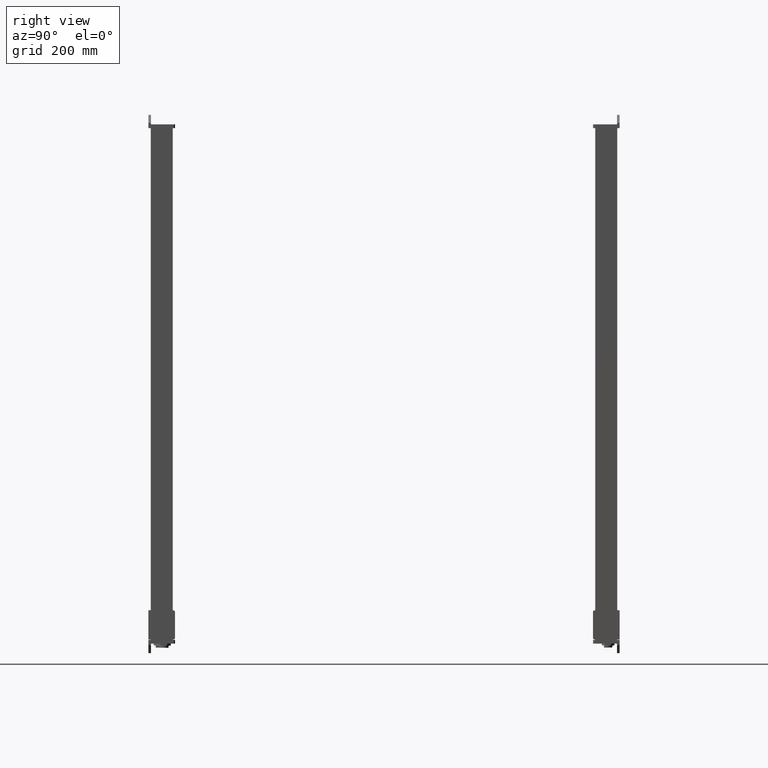
[diagram: clean part render]
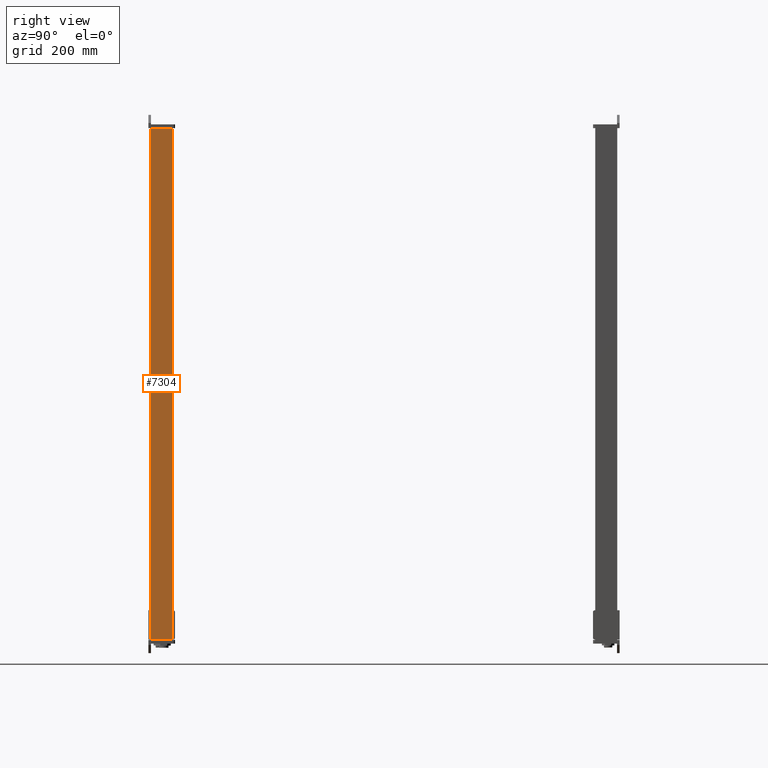
[diagram: same view with one face highlighted and labeled with its STEP entity id]
A machine part, right view. The second image highlights one B-rep face of the part: STEP entity #7304.
In plain terms, the highlighted planar face has unit normal (1, 0, 0).
Its self-contained STEP definition (entity closure, byte-faithful):
#7252=CARTESIAN_POINT('Vertex',(60.,0.,0.)) ;
#7255=CARTESIAN_POINT('Line Origine',(60.,0.,605.5)) ;
#7259=CARTESIAN_POINT('Vertex',(60.,0.,1211.)) ;
#7274=CARTESIAN_POINT('Axis2P3D Location',(60.,4.1274730146E-015,0.)) ;
#7279=CARTESIAN_POINT('Line Origine',(60.,26.,0.)) ;
#7283=CARTESIAN_POINT('Vertex',(60.,52.,0.)) ;
#7286=CARTESIAN_POINT('Line Origine',(60.,52.,605.5)) ;
#7290=CARTESIAN_POINT('Vertex',(60.,52.,1211.)) ;
#7293=CARTESIAN_POINT('Line Origine',(60.,26.,1211.)) ;
#7256=DIRECTION('Vector Direction',(0.,0.,1.)) ;
#7275=DIRECTION('Axis2P3D Direction',(1.,0.,0.)) ;
#7276=DIRECTION('Axis2P3D XDirection',(0.,1.,0.)) ;
#7280=DIRECTION('Vector Direction',(0.,1.,0.)) ;
#7287=DIRECTION('Vector Direction',(0.,0.,1.)) ;
#7294=DIRECTION('Vector Direction',(0.,1.,0.)) ;
#7277=AXIS2_PLACEMENT_3D('Plane Axis2P3D',#7274,#7275,#7276) ;
#7299=ORIENTED_EDGE('',*,*,#7261,.F.) ;
#7300=ORIENTED_EDGE('',*,*,#7285,.T.) ;
#7301=ORIENTED_EDGE('',*,*,#7292,.T.) ;
#7302=ORIENTED_EDGE('',*,*,#7297,.F.) ;
#7257=VECTOR('Line Direction',#7256,1.) ;
#7281=VECTOR('Line Direction',#7280,1.) ;
#7288=VECTOR('Line Direction',#7287,1.) ;
#7295=VECTOR('Line Direction',#7294,1.) ;
#7304=ADVANCED_FACE('PartBody',(#7303),#7278,.T.) ;
#7261=EDGE_CURVE('',#7253,#7260,#7258,.T.) ;
#7285=EDGE_CURVE('',#7253,#7284,#7282,.T.) ;
#7292=EDGE_CURVE('',#7284,#7291,#7289,.T.) ;
#7297=EDGE_CURVE('',#7260,#7291,#7296,.T.) ;
#7298=EDGE_LOOP('',(#7299,#7300,#7301,#7302)) ;
#7303=FACE_OUTER_BOUND('',#7298,.T.) ;
#7258=LINE('Line',#7255,#7257) ;
#7282=LINE('Line',#7279,#7281) ;
#7289=LINE('Line',#7286,#7288) ;
#7296=LINE('Line',#7293,#7295) ;
#7278=PLANE('Plane',#7277) ;
#7253=VERTEX_POINT('',#7252) ;
#7260=VERTEX_POINT('',#7259) ;
#7284=VERTEX_POINT('',#7283) ;
#7291=VERTEX_POINT('',#7290) ;